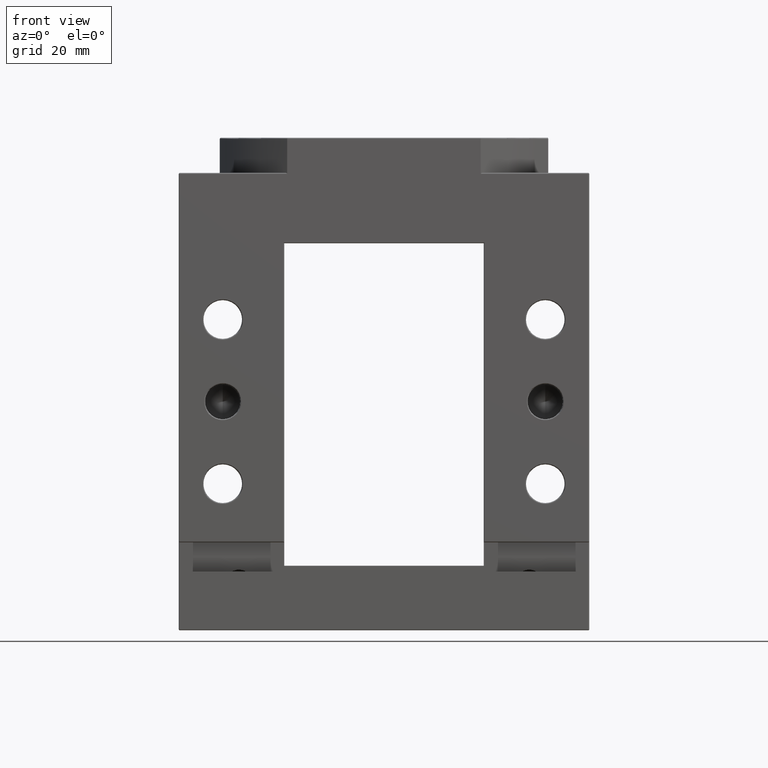
[diagram: clean part render]
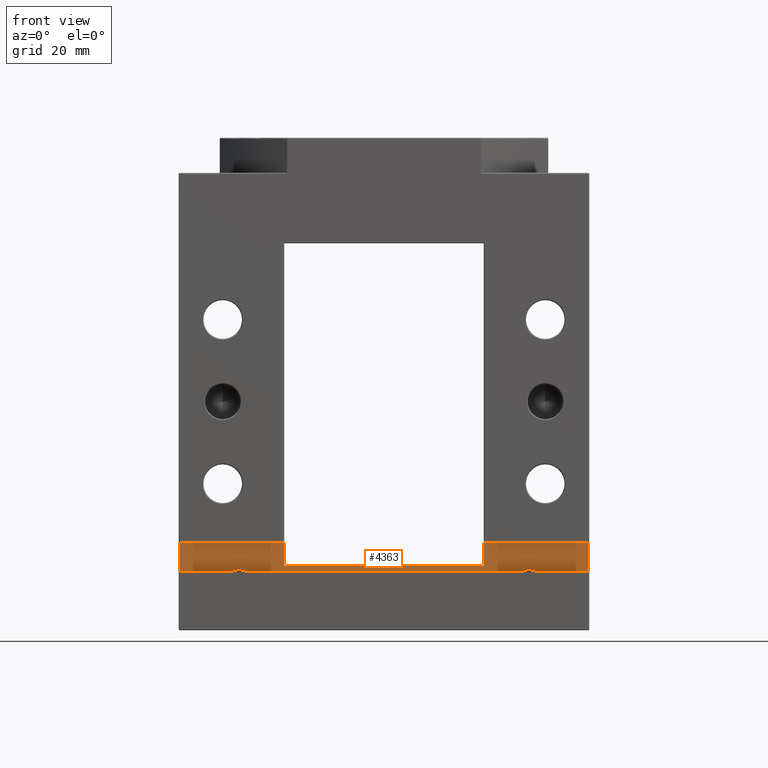
[diagram: same view with one face highlighted and labeled with its STEP entity id]
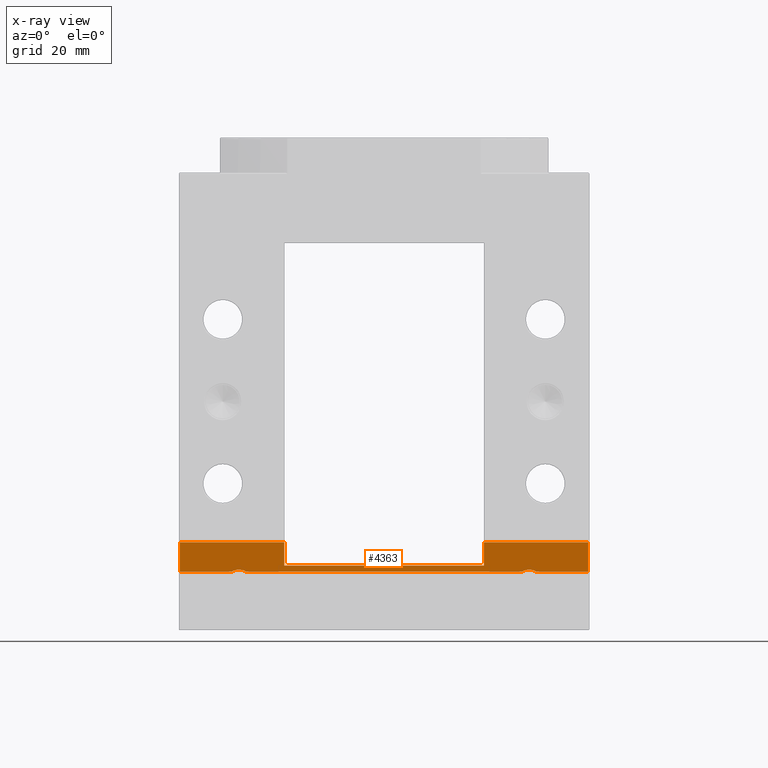
[diagram: x-ray of the same camera — body ghosted, the highlighted face saturated]
A machine part, front view. The second image highlights one B-rep face of the part: STEP entity #4363.
The next image is the same camera in x-ray: the body ghosted, the highlighted face saturated — about 0% of this face is hidden behind the body in this view.
In plain terms, the highlighted planar face has unit normal (-0, 1, 0).
Its self-contained STEP definition (entity closure, byte-faithful):
#111 = ORIENTED_EDGE ( 'NONE', *, *, #6097, .F. ) ;
#112 = ORIENTED_EDGE ( 'NONE', *, *, #6098, .T. ) ;
#113 = ORIENTED_EDGE ( 'NONE', *, *, #6096, .T. ) ;
#114 = ORIENTED_EDGE ( 'NONE', *, *, #6581, .T. ) ;
#115 = ORIENTED_EDGE ( 'NONE', *, *, #6579, .T. ) ;
#116 = ORIENTED_EDGE ( 'NONE', *, *, #6585, .T. ) ;
#117 = ORIENTED_EDGE ( 'NONE', *, *, #6099, .T. ) ;
#118 = ORIENTED_EDGE ( 'NONE', *, *, #6593, .T. ) ;
#119 = ORIENTED_EDGE ( 'NONE', *, *, #6023, .T. ) ;
#120 = ORIENTED_EDGE ( 'NONE', *, *, #5968, .T. ) ;
#121 = ORIENTED_EDGE ( 'NONE', *, *, #6088, .T. ) ;
#122 = ORIENTED_EDGE ( 'NONE', *, *, #6090, .F. ) ;
#123 = ORIENTED_EDGE ( 'NONE', *, *, #6089, .T. ) ;
#124 = ORIENTED_EDGE ( 'NONE', *, *, #6132, .T. ) ;
#125 = ORIENTED_EDGE ( 'NONE', *, *, #5942, .F. ) ;
#126 = ORIENTED_EDGE ( 'NONE', *, *, #6439, .T. ) ;
#372 = VERTEX_POINT ( 'NONE', #5858 ) ;
#374 = VERTEX_POINT ( 'NONE', #5829 ) ;
#375 = VERTEX_POINT ( 'NONE', #5897 ) ;
#376 = VERTEX_POINT ( 'NONE', #5896 ) ;
#420 = VERTEX_POINT ( 'NONE', #5894 ) ;
#456 = VERTEX_POINT ( 'NONE', #5757 ) ;
#461 = VERTEX_POINT ( 'NONE', #5818 ) ;
#462 = VERTEX_POINT ( 'NONE', #5817 ) ;
#463 = VERTEX_POINT ( 'NONE', #5816 ) ;
#464 = VERTEX_POINT ( 'NONE', #5881 ) ;
#519 = VERTEX_POINT ( 'NONE', #5765 ) ;
#520 = VERTEX_POINT ( 'NONE', #5764 ) ;
#569 = VERTEX_POINT ( 'NONE', #3074 ) ;
#570 = VERTEX_POINT ( 'NONE', #3246 ) ;
#571 = VERTEX_POINT ( 'NONE', #3253 ) ;
#572 = VERTEX_POINT ( 'NONE', #3252 ) ;
#749 = EDGE_LOOP ( 'NONE', ( #111, #113, #112, #114, #116, #115, #117, #119, #120, #118, #121, #123, #122, #124, #126, #125 ) ) ;
#1450 = FACE_OUTER_BOUND ( 'NONE', #749, .T. ) ;
#1555 = LINE ( 'NONE', #2603, #4883 ) ;
#1603 = LINE ( 'NONE', #2846, #5032 ) ;
#1659 = LINE ( 'NONE', #3441, #5129 ) ;
#1660 = LINE ( 'NONE', #3443, #5130 ) ;
#1661 = LINE ( 'NONE', #3445, #5131 ) ;
#1665 = LINE ( 'NONE', #3459, #5140 ) ;
#1666 = LINE ( 'NONE', #3461, #4902 ) ;
#1667 = LINE ( 'NONE', #3463, #5141 ) ;
#1668 = LINE ( 'NONE', #3465, #5143 ) ;
#1690 = LINE ( 'NONE', #3542, #5189 ) ;
#1717 = LINE ( 'NONE', #3616, #5235 ) ;
#1899 = LINE ( 'NONE', #4009, #5428 ) ;
#1900 = LINE ( 'NONE', #4014, #5430 ) ;
#1907 = LINE ( 'NONE', #4050, #5446 ) ;
#2105 = PLANE ( 'NONE',  #4656 ) ;
#2106 = CARTESIAN_POINT ( 'NONE',  ( -35.00002500000000100, -26.00000000000000700, 9.500000000000001800 ) ) ;
#2107 = DIRECTION ( 'NONE',  ( -2.312964634635743000E-016, 1.000000000000000000, 6.938893903907228400E-016 ) ) ;
#2108 = DIRECTION ( 'NONE',  ( 0.0000000000000000000, -6.938893903907228400E-016, 1.000000000000000000 ) ) ;
#2603 = CARTESIAN_POINT ( 'NONE',  ( -17.00000000000000700, -26.00000000000004300, 67.50000000000000000 ) ) ;
#2604 = DIRECTION ( 'NONE',  ( 0.0000000000000000000, 6.938893903907228400E-016, -1.000000000000000000 ) ) ;
#2663 = CARTESIAN_POINT ( 'NONE',  ( 23.67317155576060700, -25.99999999999998900, 4.599999999999999600 ) ) ;
#2664 = CARTESIAN_POINT ( 'NONE',  ( 23.84587785519128300, -25.99999999999998600, 4.667644883630206500 ) ) ;
#2665 = CARTESIAN_POINT ( 'NONE',  ( 24.02242663677010600, -25.99999999999999300, 4.727745530960669700 ) ) ;
#2666 = CARTESIAN_POINT ( 'NONE',  ( 24.38158616344575300, -25.99999999999997900, 4.814151768169715200 ) ) ;
#2667 = CARTESIAN_POINT ( 'NONE',  ( 24.56802870975744600, -25.99999999999999300, 4.839975859856200400 ) ) ;
#2668 = CARTESIAN_POINT ( 'NONE',  ( 24.93833213113072500, -25.99999999999999300, 4.839185792222783000 ) ) ;
#2669 = CARTESIAN_POINT ( 'NONE',  ( 25.11940660944706100, -25.99999999999999300, 4.813451127436480600 ) ) ;
#2670 = CARTESIAN_POINT ( 'NONE',  ( 25.47598675284299900, -25.99999999999999600, 4.727372126512707800 ) ) ;
#2671 = CARTESIAN_POINT ( 'NONE',  ( 25.65246616913420000, -25.99999999999999300, 4.667304383665655400 ) ) ;
#2672 = CARTESIAN_POINT ( 'NONE',  ( 25.82430312729824700, -25.99999999999998900, 4.600000000000090200 ) ) ;
#2846 = CARTESIAN_POINT ( 'NONE',  ( 23.67317155576060000, -25.99999999999998200, -5.500000000000000900 ) ) ;
#2847 = DIRECTION ( 'NONE',  ( 0.0000000000000000000, 0.0000000000000000000, 1.000000000000000000 ) ) ;
#3074 = CARTESIAN_POINT ( 'NONE',  ( -23.67317155576025900, -26.00000000000000000, 4.500000000000000900 ) ) ;
#3246 = CARTESIAN_POINT ( 'NONE',  ( -25.82430312729798800, -26.00000000000000000, 4.500000000000000900 ) ) ;
#3252 = CARTESIAN_POINT ( 'NONE',  ( -23.67317155575998600, -26.00000000000000000, 4.600000000000090200 ) ) ;
#3253 = CARTESIAN_POINT ( 'NONE',  ( -25.82430312729798800, -26.00000000000000000, 4.599999999999999600 ) ) ;
#3441 = CARTESIAN_POINT ( 'NONE',  ( -35.00002500000000100, -26.00000000000000400, 4.500000000000000900 ) ) ;
#3442 = DIRECTION ( 'NONE',  ( 1.000000000000000000, 2.312964634635743000E-016, -0.0000000000000000000 ) ) ;
#3443 = CARTESIAN_POINT ( 'NONE',  ( 34.80000000000001100, -25.99999999999998900, 9.500000000000001800 ) ) ;
#3444 = DIRECTION ( 'NONE',  ( 1.604941620322696600E-031, -6.938893903907228400E-016, 1.000000000000000000 ) ) ;
#3445 = CARTESIAN_POINT ( 'NONE',  ( -35.00002500000000100, -26.00000000000000700, 9.500000000000001800 ) ) ;
#3446 = DIRECTION ( 'NONE',  ( 1.000000000000000000, 2.312964634635743000E-016, -0.0000000000000000000 ) ) ;
#3459 = CARTESIAN_POINT ( 'NONE',  ( -34.80000000000000400, -26.00000000000000400, 4.500000000000000900 ) ) ;
#3460 = DIRECTION ( 'NONE',  ( 1.604941620322696600E-031, 6.938893903907228400E-016, -1.000000000000000000 ) ) ;
#3461 = CARTESIAN_POINT ( 'NONE',  ( -35.00002500000000100, -26.00000000000000700, 9.500000000000001800 ) ) ;
#3462 = DIRECTION ( 'NONE',  ( 1.000000000000000000, 2.312964634635743000E-016, -0.0000000000000000000 ) ) ;
#3463 = CARTESIAN_POINT ( 'NONE',  ( -35.00002500000000100, -26.00000000000000400, 4.500000000000000900 ) ) ;
#3464 = DIRECTION ( 'NONE',  ( 1.000000000000000000, 2.312964634635743000E-016, -0.0000000000000000000 ) ) ;
#3465 = CARTESIAN_POINT ( 'NONE',  ( -35.00002500000000100, -26.00000000000000400, 4.500000000000000900 ) ) ;
#3466 = DIRECTION ( 'NONE',  ( 1.000000000000000000, 2.312964634635743000E-016, -0.0000000000000000000 ) ) ;
#3542 = CARTESIAN_POINT ( 'NONE',  ( 17.00000000000000700, -26.00000000000003200, 67.50000000000000000 ) ) ;
#3543 = DIRECTION ( 'NONE',  ( 0.0000000000000000000, 6.938893903907228400E-016, -1.000000000000000000 ) ) ;
#3616 = CARTESIAN_POINT ( 'NONE',  ( -33.00000000000000700, -26.00000000000000400, 5.500000000000000000 ) ) ;
#3617 = DIRECTION ( 'NONE',  ( -1.000000000000000000, -2.312964634635743000E-016, 0.0000000000000000000 ) ) ;
#4009 = CARTESIAN_POINT ( 'NONE',  ( -23.67317155576024800, -25.99999999999999300, -5.500000000000000900 ) ) ;
#4010 = DIRECTION ( 'NONE',  ( -0.0000000000000000000, -0.0000000000000000000, -1.000000000000000000 ) ) ;
#4014 = CARTESIAN_POINT ( 'NONE',  ( -25.82430312729799800, -25.99999999999999300, -5.500000000000000900 ) ) ;
#4015 = DIRECTION ( 'NONE',  ( 0.0000000000000000000, 0.0000000000000000000, 1.000000000000000000 ) ) ;
#4023 = CARTESIAN_POINT ( 'NONE',  ( -25.82430312729798800, -26.00000000000000000, 4.599999999999999600 ) ) ;
#4024 = CARTESIAN_POINT ( 'NONE',  ( -25.65159682786728700, -26.00000000000000000, 4.667644883630229600 ) ) ;
#4025 = CARTESIAN_POINT ( 'NONE',  ( -25.47504804628844300, -26.00000000000000400, 4.727745530960713300 ) ) ;
#4026 = CARTESIAN_POINT ( 'NONE',  ( -25.11588851961272800, -25.99999999999999600, 4.814151768169797000 ) ) ;
#4027 = CARTESIAN_POINT ( 'NONE',  ( -24.92944597330100000, -26.00000000000000000, 4.839975859856294500 ) ) ;
#4028 = CARTESIAN_POINT ( 'NONE',  ( -24.55914255192766800, -25.99999999999999600, 4.839185792222875400 ) ) ;
#4029 = CARTESIAN_POINT ( 'NONE',  ( -24.37806807361128800, -26.00000000000000000, 4.813451127436560600 ) ) ;
#4030 = CARTESIAN_POINT ( 'NONE',  ( -24.02148793021529000, -26.00000000000000000, 4.727372126512751300 ) ) ;
#4031 = CARTESIAN_POINT ( 'NONE',  ( -23.84500851392406100, -26.00000000000000000, 4.667304383665677600 ) ) ;
#4032 = CARTESIAN_POINT ( 'NONE',  ( -23.67317155575998600, -26.00000000000000000, 4.600000000000090200 ) ) ;
#4050 = CARTESIAN_POINT ( 'NONE',  ( 25.82430312729798100, -25.99999999999998200, -5.500000000000000900 ) ) ;
#4051 = DIRECTION ( 'NONE',  ( -0.0000000000000000000, -0.0000000000000000000, -1.000000000000000000 ) ) ;
#4363 = ADVANCED_FACE ( 'NONE', ( #1450 ), #2105, .F. ) ;
#4656 = AXIS2_PLACEMENT_3D ( 'NONE', #2106, #2107, #2108 ) ;
#4883 = VECTOR ( 'NONE', #2604, 1000.000000000000000 ) ;
#4902 = VECTOR ( 'NONE', #3462, 1000.000000000000000 ) ;
#5032 = VECTOR ( 'NONE', #2847, 1000.000000000000000 ) ;
#5129 = VECTOR ( 'NONE', #3442, 1000.000000000000000 ) ;
#5130 = VECTOR ( 'NONE', #3444, 1000.000000000000000 ) ;
#5131 = VECTOR ( 'NONE', #3446, 1000.000000000000000 ) ;
#5140 = VECTOR ( 'NONE', #3460, 1000.000000000000000 ) ;
#5141 = VECTOR ( 'NONE', #3464, 1000.000000000000000 ) ;
#5143 = VECTOR ( 'NONE', #3466, 1000.000000000000000 ) ;
#5189 = VECTOR ( 'NONE', #3543, 1000.000000000000000 ) ;
#5235 = VECTOR ( 'NONE', #3617, 1000.000000000000000 ) ;
#5428 = VECTOR ( 'NONE', #4010, 1000.000000000000000 ) ;
#5430 = VECTOR ( 'NONE', #4015, 1000.000000000000000 ) ;
#5446 = VECTOR ( 'NONE', #4051, 1000.000000000000000 ) ;
#5757 = CARTESIAN_POINT ( 'NONE',  ( -34.80000000000000400, -26.00000000000000700, 9.500000000000001800 ) ) ;
#5764 = CARTESIAN_POINT ( 'NONE',  ( -17.00000000000000700, -26.00000000000000000, 5.500000000000000000 ) ) ;
#5765 = CARTESIAN_POINT ( 'NONE',  ( 17.00000000000000700, -25.99999999999999300, 5.500000000000000000 ) ) ;
#5816 = CARTESIAN_POINT ( 'NONE',  ( 23.67317155576060700, -25.99999999999998900, 4.599999999999999600 ) ) ;
#5817 = CARTESIAN_POINT ( 'NONE',  ( 23.67317155576060700, -25.99999999999998900, 4.500000000000000900 ) ) ;
#5818 = CARTESIAN_POINT ( 'NONE',  ( 25.82430312729797400, -25.99999999999998900, 4.500000000000000900 ) ) ;
#5829 = CARTESIAN_POINT ( 'NONE',  ( 34.80000000000001100, -25.99999999999998900, 9.500000000000001800 ) ) ;
#5858 = CARTESIAN_POINT ( 'NONE',  ( -17.00000000000000700, -26.00000000000000400, 9.500000000000001800 ) ) ;
#5881 = CARTESIAN_POINT ( 'NONE',  ( 25.82430312729824700, -25.99999999999998900, 4.600000000000090200 ) ) ;
#5894 = CARTESIAN_POINT ( 'NONE',  ( 17.00000000000000700, -25.99999999999999600, 9.500000000000001800 ) ) ;
#5896 = CARTESIAN_POINT ( 'NONE',  ( 34.80000000000001100, -25.99999999999998600, 4.500000000000000900 ) ) ;
#5897 = CARTESIAN_POINT ( 'NONE',  ( -34.80000000000000400, -26.00000000000000400, 4.500000000000000900 ) ) ;
#5942 = EDGE_CURVE ( 'NONE', #372, #520, #1555, .T. ) ;
#5968 = EDGE_CURVE ( 'NONE', #463, #464, #6634, .T. ) ;
#6023 = EDGE_CURVE ( 'NONE', #462, #463, #1603, .T. ) ;
#6088 = EDGE_CURVE ( 'NONE', #461, #376, #1659, .T. ) ;
#6089 = EDGE_CURVE ( 'NONE', #376, #374, #1660, .T. ) ;
#6090 = EDGE_CURVE ( 'NONE', #420, #374, #1661, .T. ) ;
#6096 = EDGE_CURVE ( 'NONE', #456, #375, #1665, .T. ) ;
#6097 = EDGE_CURVE ( 'NONE', #456, #372, #1666, .T. ) ;
#6098 = EDGE_CURVE ( 'NONE', #375, #570, #1667, .T. ) ;
#6099 = EDGE_CURVE ( 'NONE', #569, #462, #1668, .T. ) ;
#6132 = EDGE_CURVE ( 'NONE', #420, #519, #1690, .T. ) ;
#6439 = EDGE_CURVE ( 'NONE', #519, #520, #1717, .T. ) ;
#6579 = EDGE_CURVE ( 'NONE', #572, #569, #1899, .T. ) ;
#6581 = EDGE_CURVE ( 'NONE', #570, #571, #1900, .T. ) ;
#6585 = EDGE_CURVE ( 'NONE', #571, #572, #6635, .T. ) ;
#6593 = EDGE_CURVE ( 'NONE', #464, #461, #1907, .T. ) ;
#6634 = B_SPLINE_CURVE_WITH_KNOTS ( 'NONE', 3,
 ( #2663, #2664, #2665, #2666, #2667, #2668, #2669, #2670, #2671, #2672 ),
 .UNSPECIFIED., .F., .F.,
 ( 4, 2, 2, 2, 4 ),
 ( 0.008215515420825072300, 0.008766871438204971300, 0.009318227455584870300, 0.009869583472964771000, 0.01042093949034467000 ),
 .UNSPECIFIED. ) ;
#6635 = B_SPLINE_CURVE_WITH_KNOTS ( 'NONE', 3,
 ( #4023, #4024, #4025, #4026, #4027, #4028, #4029, #4030, #4031, #4032 ),
 .UNSPECIFIED., .F., .F.,
 ( 4, 2, 2, 2, 4 ),
 ( 0.008215515420824767000, 0.008766871438204768300, 0.009318227455584769700, 0.009869583472964772700, 0.01042093949034477400 ),
 .UNSPECIFIED. ) ;